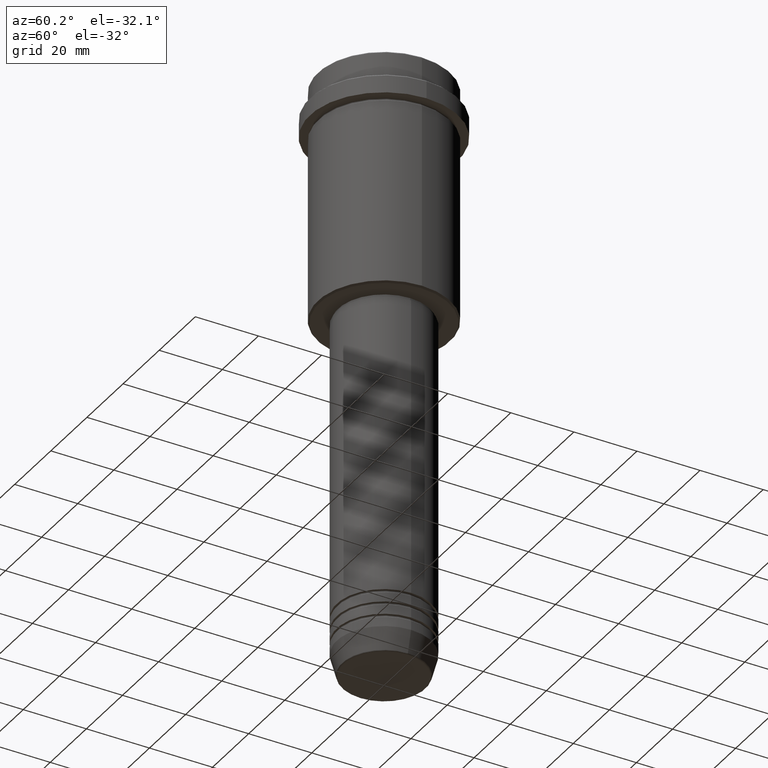
[diagram: clean part render]
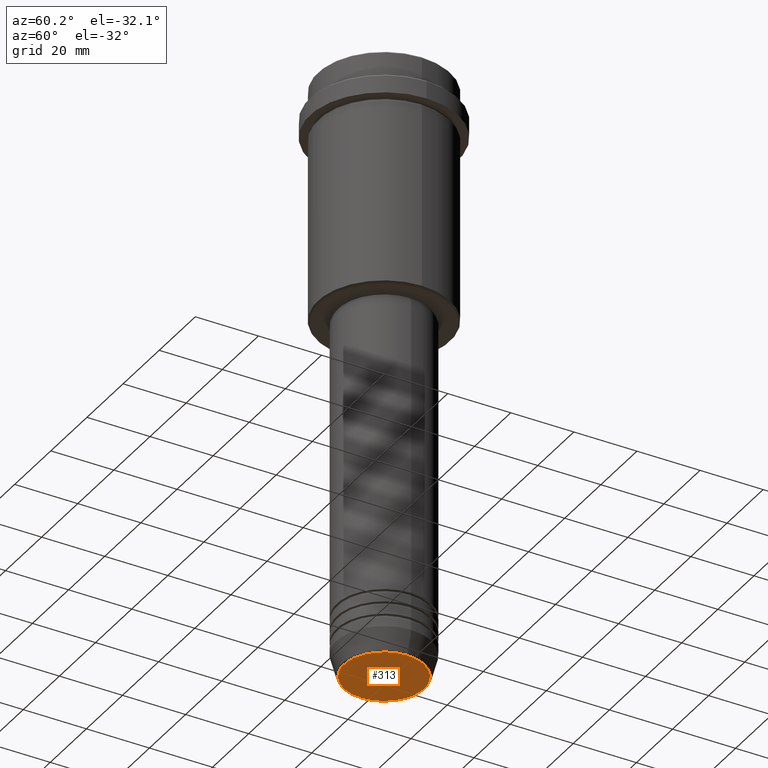
[diagram: same view with one face highlighted and labeled with its STEP entity id]
A machine part, auxiliary view. The second image highlights one B-rep face of the part: STEP entity #313.
In plain terms, the highlighted planar face has unit normal (0, -0, 1).
Its self-contained STEP definition (entity closure, byte-faithful):
#105 = CARTESIAN_POINT ( 'NONE',  ( -12.74069215899265828, 1.589857736427681035E-15, -190.0000000000000000 ) ) ;
#136 = ORIENTED_EDGE ( 'NONE', *, *, #426, .T. ) ;
#247 = VERTEX_POINT ( 'NONE', #546 ) ;
#313 = ADVANCED_FACE ( 'NONE', ( #987 ), #658, .F. ) ;
#356 = AXIS2_PLACEMENT_3D ( 'NONE', #520, #834, #1402 ) ;
#426 = EDGE_CURVE ( 'NONE', #698, #247, #824, .T. ) ;
#520 = CARTESIAN_POINT ( 'NONE',  ( 0.000000000000000000, 0.000000000000000000, -190.0000000000000000 ) ) ;
#529 = CARTESIAN_POINT ( 'NONE',  ( 0.000000000000000000, 0.000000000000000000, -190.0000000000000000 ) ) ;
#546 = CARTESIAN_POINT ( 'NONE',  ( 12.74069215899265828, 0.000000000000000000, -190.0000000000000000 ) ) ;
#575 = DIRECTION ( 'NONE',  ( 0.000000000000000000, 0.000000000000000000, -1.000000000000000000 ) ) ;
#658 = PLANE ( 'NONE',  #1079 ) ;
#697 = CARTESIAN_POINT ( 'NONE',  ( 0.000000000000000000, 0.000000000000000000, -190.0000000000000000 ) ) ;
#698 = VERTEX_POINT ( 'NONE', #105 ) ;
#742 = ORIENTED_EDGE ( 'NONE', *, *, #1118, .T. ) ;
#824 = CIRCLE ( 'NONE', #1304, 12.74069215899265828 ) ;
#834 = DIRECTION ( 'NONE',  ( 0.000000000000000000, 0.000000000000000000, -1.000000000000000000 ) ) ;
#987 = FACE_OUTER_BOUND ( 'NONE', #1409, .T. ) ;
#1079 = AXIS2_PLACEMENT_3D ( 'NONE', #529, #1181, #1193 ) ;
#1118 = EDGE_CURVE ( 'NONE', #247, #698, #1223, .T. ) ;
#1181 = DIRECTION ( 'NONE',  ( 0.000000000000000000, -0.000000000000000000, 1.000000000000000000 ) ) ;
#1193 = DIRECTION ( 'NONE',  ( 1.000000000000000000, 0.000000000000000000, 0.000000000000000000 ) ) ;
#1223 = CIRCLE ( 'NONE', #356, 12.74069215899265828 ) ;
#1304 = AXIS2_PLACEMENT_3D ( 'NONE', #697, #575, #1325 ) ;
#1325 = DIRECTION ( 'NONE',  ( 1.000000000000000000, 0.000000000000000000, 0.000000000000000000 ) ) ;
#1402 = DIRECTION ( 'NONE',  ( 1.000000000000000000, 0.000000000000000000, 0.000000000000000000 ) ) ;
#1409 = EDGE_LOOP ( 'NONE', ( #742, #136 ) ) ;